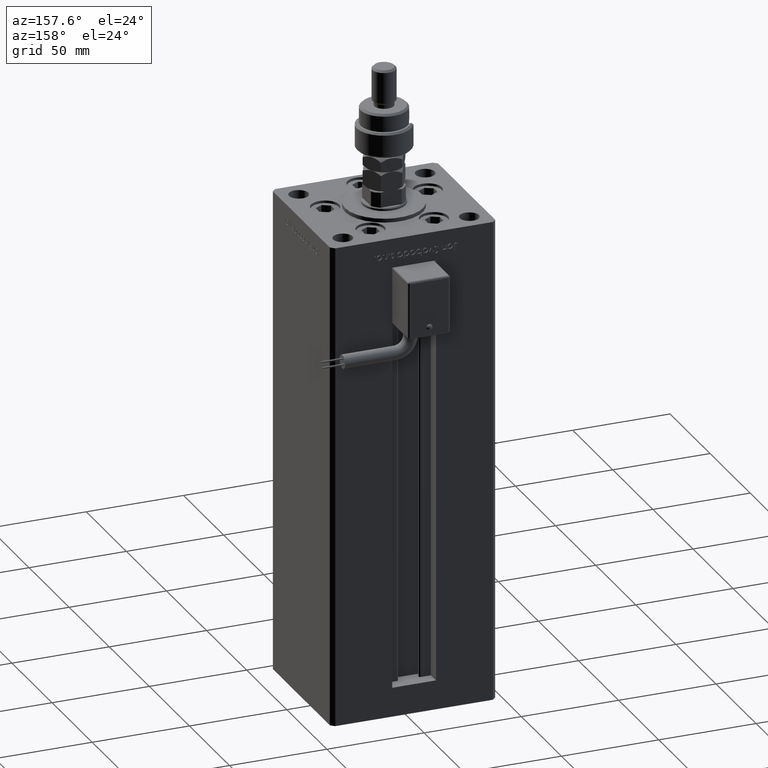
[diagram: clean part render]
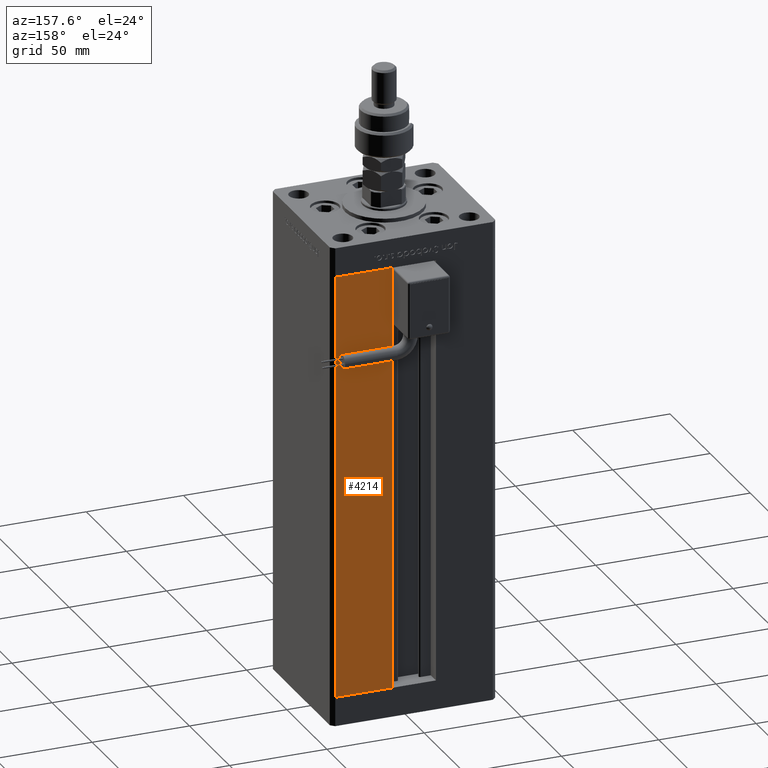
[diagram: same view with one face highlighted and labeled with its STEP entity id]
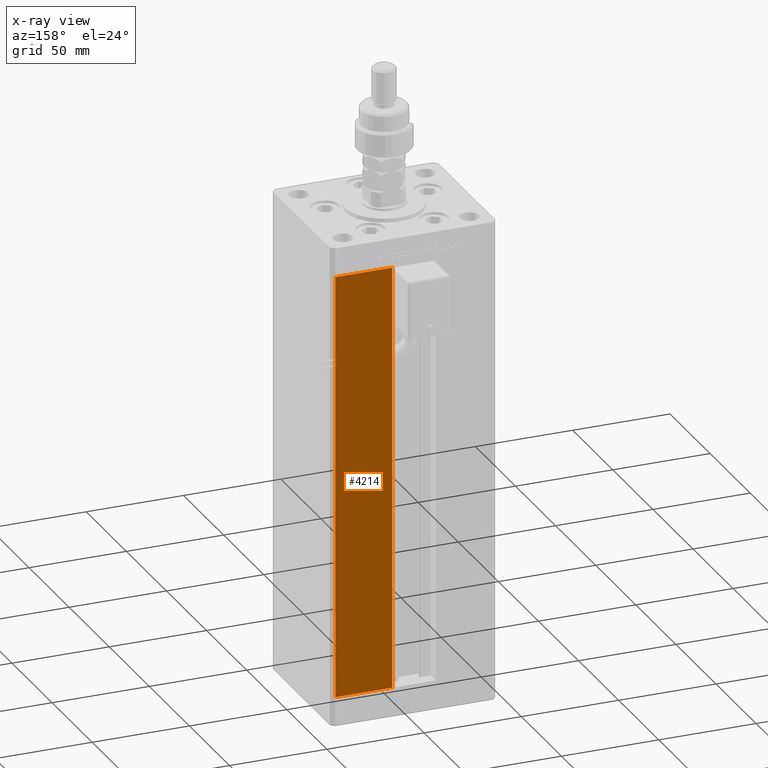
[diagram: x-ray of the same camera — body ghosted, the highlighted face saturated]
A machine part, auxiliary view. The second image highlights one B-rep face of the part: STEP entity #4214.
The next image is the same camera in x-ray: the body ghosted, the highlighted face saturated — about 0% of this face is hidden behind the body in this view.
In plain terms, the highlighted planar face has unit normal (-0, -1, 0).
Its self-contained STEP definition (entity closure, byte-faithful):
#913 = LINE ( 'NONE', #45491, #47563 ) ;
#1403 = VERTEX_POINT ( 'NONE', #56109 ) ;
#2161 = CARTESIAN_POINT ( 'NONE',  ( 11.25000000000000000, 37.50000000000000000, 0.000000000000000000 ) ) ;
#4120 = VERTEX_POINT ( 'NONE', #2161 ) ;
#4214 = ADVANCED_FACE ( 'NONE', ( #21769 ), #29992, .F. ) ;
#4324 = AXIS2_PLACEMENT_3D ( 'NONE', #48163, #21475, #8000 ) ;
#8000 = DIRECTION ( 'NONE',  ( 1.000000000000000000, -2.372271420139223824E-16, 0.000000000000000000 ) ) ;
#9390 = VERTEX_POINT ( 'NONE', #13008 ) ;
#12169 = CARTESIAN_POINT ( 'NONE',  ( 40.50000000000000000, 37.50000000000000711, 0.000000000000000000 ) ) ;
#12311 = EDGE_CURVE ( 'NONE', #14826, #4120, #913, .T. ) ;
#13008 = CARTESIAN_POINT ( 'NONE',  ( 40.50000000000000000, 37.50000000000000711, 218.5000000000000000 ) ) ;
#14712 = DIRECTION ( 'NONE',  ( -1.000000000000000000, 2.372271420139223331E-16, 0.000000000000000000 ) ) ;
#14826 = VERTEX_POINT ( 'NONE', #12169 ) ;
#16968 = CARTESIAN_POINT ( 'NONE',  ( 40.50000000000000000, 37.50000000000000711, 218.5000000000000000 ) ) ;
#21166 = DIRECTION ( 'NONE',  ( -0.000000000000000000, -0.000000000000000000, 1.000000000000000000 ) ) ;
#21475 = DIRECTION ( 'NONE',  ( -2.372271420139223824E-16, -1.000000000000000000, 0.000000000000000000 ) ) ;
#21769 = FACE_OUTER_BOUND ( 'NONE', #50698, .T. ) ;
#23856 = VECTOR ( 'NONE', #21166, 1000.000000000000000 ) ;
#26126 = LINE ( 'NONE', #44018, #29075 ) ;
#29075 = VECTOR ( 'NONE', #30818, 1000.000000000000000 ) ;
#29992 = PLANE ( 'NONE',  #4324 ) ;
#30818 = DIRECTION ( 'NONE',  ( 1.000000000000000000, 0.000000000000000000, 0.000000000000000000 ) ) ;
#34562 = LINE ( 'NONE', #16968, #40793 ) ;
#36962 = EDGE_CURVE ( 'NONE', #4120, #1403, #48434, .T. ) ;
#38736 = EDGE_CURVE ( 'NONE', #9390, #14826, #34562, .T. ) ;
#39534 = DIRECTION ( 'NONE',  ( -0.000000000000000000, -0.000000000000000000, -1.000000000000000000 ) ) ;
#39916 = CARTESIAN_POINT ( 'NONE',  ( 11.25000000000000000, 37.50000000000000000, 0.000000000000000000 ) ) ;
#40793 = VECTOR ( 'NONE', #39534, 1000.000000000000000 ) ;
#41330 = ORIENTED_EDGE ( 'NONE', *, *, #36962, .T. ) ;
#44018 = CARTESIAN_POINT ( 'NONE',  ( -11.25000000000000000, 37.50000000000000000, 218.5000000000000000 ) ) ;
#45491 = CARTESIAN_POINT ( 'NONE',  ( -11.25000000000000000, 37.50000000000000000, 0.000000000000000000 ) ) ;
#47563 = VECTOR ( 'NONE', #14712, 1000.000000000000000 ) ;
#48163 = CARTESIAN_POINT ( 'NONE',  ( -11.25000000000000000, 37.50000000000000000, 218.5000000000000000 ) ) ;
#48434 = LINE ( 'NONE', #39916, #23856 ) ;
#49084 = ORIENTED_EDGE ( 'NONE', *, *, #12311, .T. ) ;
#50689 = ORIENTED_EDGE ( 'NONE', *, *, #51120, .T. ) ;
#50698 = EDGE_LOOP ( 'NONE', ( #49084, #41330, #50689, #56288 ) ) ;
#51120 = EDGE_CURVE ( 'NONE', #1403, #9390, #26126, .T. ) ;
#56109 = CARTESIAN_POINT ( 'NONE',  ( 11.24999999999999289, 37.50000000000000000, 218.5000000000000000 ) ) ;
#56288 = ORIENTED_EDGE ( 'NONE', *, *, #38736, .T. ) ;